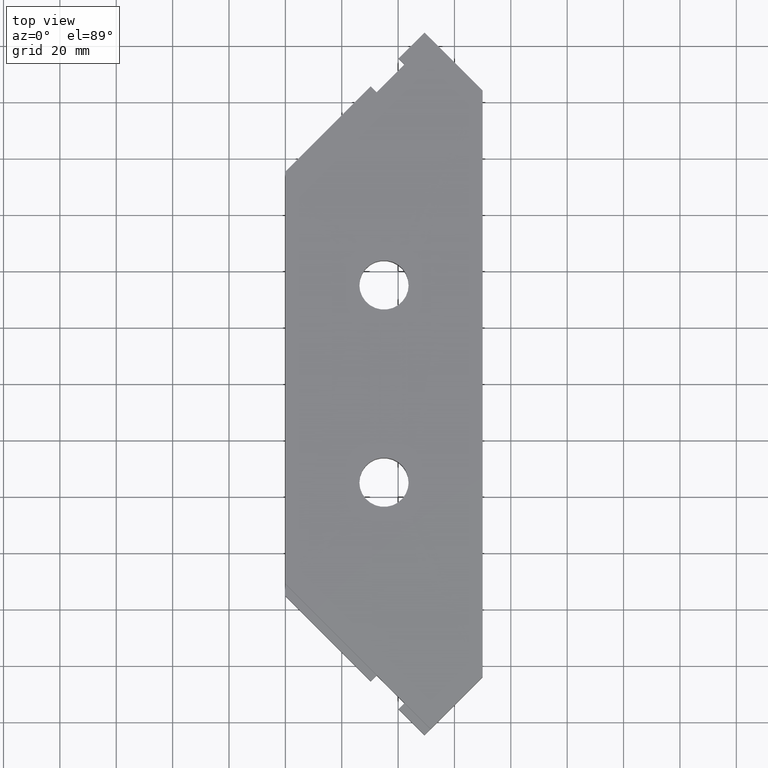
[diagram: clean part render]
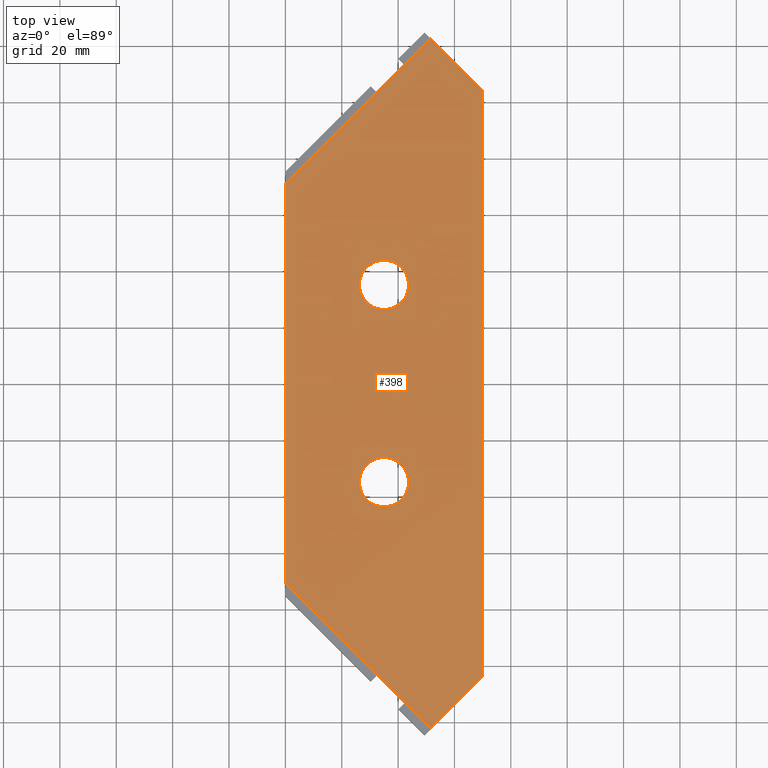
[diagram: same view with one face highlighted and labeled with its STEP entity id]
A machine part, top view. The second image highlights one B-rep face of the part: STEP entity #398.
In plain terms, the highlighted planar face has unit normal (0, 0, 1).
Its self-contained STEP definition (entity closure, byte-faithful):
#7=CARTESIAN_POINT('',(69.999999999719904,-103.999999999584390,18.0));
#8=VERTEX_POINT('',#7);
#25=CARTESIAN_POINT('',(69.999999999719876,103.999999999583680,18.0));
#26=VERTEX_POINT('',#25);
#33=CARTESIAN_POINT('',(69.999999999719904,-103.999999999584390,18.0));
#34=DIRECTION('',(0.0,1.0,0.0));
#35=VECTOR('',#34,207.999999999168070);
#36=LINE('',#33,#35);
#37=EDGE_CURVE('',#8,#26,#36,.T.);
#87=CARTESIAN_POINT('',(51.499999999793999,122.499999999510010,18.0));
#88=VERTEX_POINT('',#87);
#169=CARTESIAN_POINT('',(0.0,70.999999999716010,18.0));
#170=VERTEX_POINT('',#169);
#177=CARTESIAN_POINT('',(51.499999999793999,122.499999999510010,18.0));
#178=DIRECTION('',(-0.707106781186548,-0.707106781186548,0.0));
#179=VECTOR('',#178,72.831998461923064);
#180=LINE('',#177,#179);
#181=EDGE_CURVE('',#88,#170,#180,.T.);
#211=CARTESIAN_POINT('',(0.0,-70.999999999716010,18.0));
#212=VERTEX_POINT('',#211);
#293=CARTESIAN_POINT('',(51.499999999793999,-122.499999999510010,18.0));
#294=VERTEX_POINT('',#293);
#301=CARTESIAN_POINT('',(0.0,-70.999999999716010,18.0));
#302=DIRECTION('',(0.707106781186548,-0.707106781186548,0.0));
#303=VECTOR('',#302,72.831998461923064);
#304=LINE('',#301,#303);
#305=EDGE_CURVE('',#212,#294,#304,.T.);
#330=CARTESIAN_POINT('',(-7.000004725295597,-147.000004724302470,18.0));
#331=DIRECTION('',(0.0,0.0,1.0));
#332=DIRECTION('',(1.0,0.0,0.0));
#333=AXIS2_PLACEMENT_3D('',#330,#331,#332);
#334=PLANE('',#333);
#335=ORIENTED_EDGE('',*,*,#37,.T.);
#336=CARTESIAN_POINT('',(69.999999999719876,103.999999999583680,18.0));
#337=DIRECTION('',(-0.707106781186539,0.707106781186556,0.0));
#338=VECTOR('',#337,26.162950903797753);
#339=LINE('',#336,#338);
#340=EDGE_CURVE('',#26,#88,#339,.T.);
#341=ORIENTED_EDGE('',*,*,#340,.T.);
#342=ORIENTED_EDGE('',*,*,#181,.T.);
#343=CARTESIAN_POINT('',(0.0,70.999999999716010,18.0));
#344=DIRECTION('',(0.0,-1.0,0.0));
#345=VECTOR('',#344,141.999999999432020);
#346=LINE('',#343,#345);
#347=EDGE_CURVE('',#170,#212,#346,.T.);
#348=ORIENTED_EDGE('',*,*,#347,.T.);
#349=ORIENTED_EDGE('',*,*,#305,.T.);
#350=CARTESIAN_POINT('',(51.499999999793999,-122.499999999510010,18.0));
#351=DIRECTION('',(0.707106781186553,0.707106781186542,0.0));
#352=VECTOR('',#351,26.162950903797270);
#353=LINE('',#350,#352);
#354=EDGE_CURVE('',#294,#8,#353,.T.);
#355=ORIENTED_EDGE('',*,*,#354,.T.);
#356=EDGE_LOOP('',(#335,#341,#342,#348,#349,#355));
#357=FACE_OUTER_BOUND('',#356,.T.);
#358=CARTESIAN_POINT('',(26.249999999859938,-34.999999999860165,18.0));
#359=VERTEX_POINT('',#358);
#360=CARTESIAN_POINT('',(43.749999999859938,-34.999999999860165,18.0));
#361=VERTEX_POINT('',#360);
#362=CARTESIAN_POINT('',(34.999999999859938,-34.999999999860165,18.0));
#363=DIRECTION('',(0.0,0.0,1.0));
#364=DIRECTION('',(1.0,0.0,0.0));
#365=AXIS2_PLACEMENT_3D('',#362,#363,#364);
#366=CIRCLE('',#365,8.750000000000000);
#367=EDGE_CURVE('',#359,#361,#366,.T.);
#368=ORIENTED_EDGE('',*,*,#367,.F.);
#369=CARTESIAN_POINT('',(34.999999999859938,-34.999999999860165,18.0));
#370=DIRECTION('',(0.0,0.0,1.0));
#371=DIRECTION('',(1.0,0.0,0.0));
#372=AXIS2_PLACEMENT_3D('',#369,#370,#371);
#373=CIRCLE('',#372,8.750000000000000);
#374=EDGE_CURVE('',#361,#359,#373,.T.);
#375=ORIENTED_EDGE('',*,*,#374,.F.);
#376=EDGE_LOOP('',(#368,#375));
#377=FACE_BOUND('',#376,.T.);
#378=CARTESIAN_POINT('',(26.249999999859938,34.999999999859710,18.0));
#379=VERTEX_POINT('',#378);
#380=CARTESIAN_POINT('',(43.749999999859938,34.999999999859710,18.0));
#381=VERTEX_POINT('',#380);
#382=CARTESIAN_POINT('',(34.999999999859938,34.999999999859710,18.0));
#383=DIRECTION('',(0.0,0.0,1.0));
#384=DIRECTION('',(1.0,0.0,0.0));
#385=AXIS2_PLACEMENT_3D('',#382,#383,#384);
#386=CIRCLE('',#385,8.750000000000000);
#387=EDGE_CURVE('',#379,#381,#386,.T.);
#388=ORIENTED_EDGE('',*,*,#387,.F.);
#389=CARTESIAN_POINT('',(34.999999999859938,34.999999999859710,18.0));
#390=DIRECTION('',(0.0,0.0,1.0));
#391=DIRECTION('',(1.0,0.0,0.0));
#392=AXIS2_PLACEMENT_3D('',#389,#390,#391);
#393=CIRCLE('',#392,8.750000000000000);
#394=EDGE_CURVE('',#381,#379,#393,.T.);
#395=ORIENTED_EDGE('',*,*,#394,.F.);
#396=EDGE_LOOP('',(#388,#395));
#397=FACE_BOUND('',#396,.T.);
#398=ADVANCED_FACE('',(#357,#377,#397),#334,.T.);